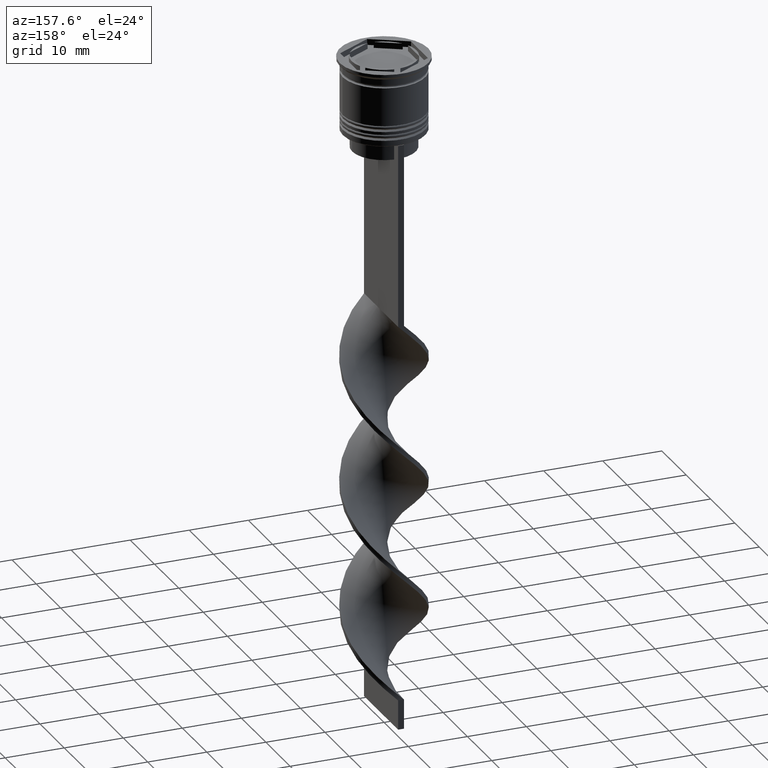
[diagram: clean part render]
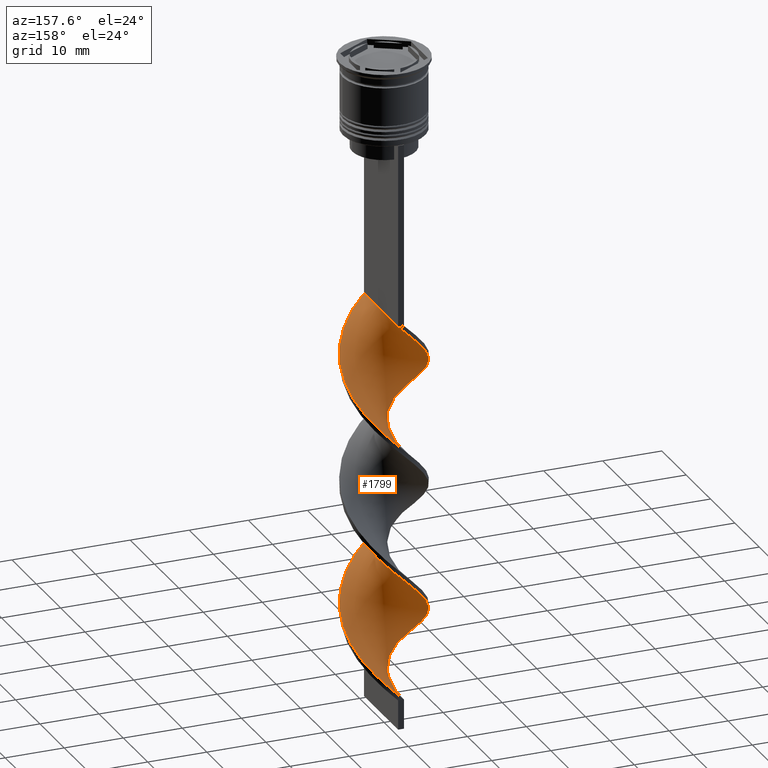
[diagram: same view with one face highlighted and labeled with its STEP entity id]
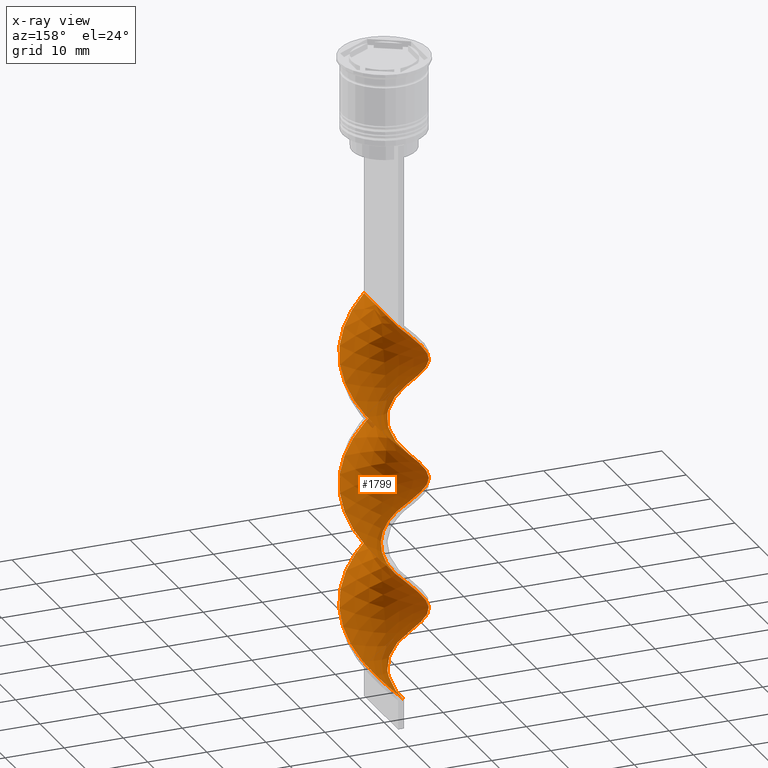
[diagram: x-ray of the same camera — body ghosted, the highlighted face saturated]
A machine part, auxiliary view. The second image highlights one B-rep face of the part: STEP entity #1799.
The next image is the same camera in x-ray: the body ghosted, the highlighted face saturated — about 0% of this face is hidden behind the body in this view.
In plain terms, the highlighted face is a freeform B-spline surface patch.
Its self-contained STEP definition (entity closure, byte-faithful):
#25 = CARTESIAN_POINT ( 'NONE',  ( 0.5000000000000000000, -6.999999999999997335, -43.50000000000000000 ) ) ;
#33 = CARTESIAN_POINT ( 'NONE',  ( 6.967048179568302579, 1.198476987909308011, -77.14102564102563520 ) ) ;
#50 = CARTESIAN_POINT ( 'NONE',  ( 6.722416142319175059, 2.014726087955042821, -77.96153846153845279 ) ) ;
#59 = CARTESIAN_POINT ( 'NONE',  ( 7.009230458814037057, -0.3474023247382352353, -53.34615384615383959 ) ) ;
#65 = CARTESIAN_POINT ( 'NONE',  ( -6.009647691495620947, 3.722934602041179986, -50.88461538461538680 ) ) ;
#78 = CARTESIAN_POINT ( 'NONE',  ( 5.476854687890015505, 4.387945160064917083, -58.26923076923076650 ) ) ;
#89 = CARTESIAN_POINT ( 'NONE',  ( 6.888693778558718783, -1.340111198836292372, -74.67948717948718240 ) ) ;
#114 = CARTESIAN_POINT ( 'NONE',  ( -2.029523600043934728, -6.771790116641152935, -83.70512820512820440 ) ) ;
#122 = CARTESIAN_POINT ( 'NONE',  ( -6.725974819057656262, 2.176550059239737323, -95.19230769230769340 ) ) ;
#128 = CARTESIAN_POINT ( 'NONE',  ( 0.3499538825558265454, 7.060710991611127696, -64.01282051282051100 ) ) ;
#141 = CARTESIAN_POINT ( 'NONE',  ( 7.009230458814037057, -0.3474023247382352353, -53.34615384615383959 ) ) ;
#147 = CARTESIAN_POINT ( 'NONE',  ( 3.591144782915617117, -6.089317414547554819, -68.93589743589743080 ) ) ;
#150 = CARTESIAN_POINT ( 'NONE',  ( 7.009230458814037057, -0.3474023247382352353, -96.01282051282051100 ) ) ;
#155 = CARTESIAN_POINT ( 'NONE',  ( 7.051412738059776864, 0.5036723384328409825, -54.16666666666665719 ) ) ;
#159 = CARTESIAN_POINT ( 'NONE',  ( 6.367811255276637716, -2.949742330640459542, -73.03846153846153300 ) ) ;
#164 = CARTESIAN_POINT ( 'NONE',  ( 1.349953882555823492, -6.939289008388866975, -86.98717948717948900 ) ) ;
#171 = CARTESIAN_POINT ( 'NONE',  ( -0.3499538825558239363, 7.060710991611133025, -86.98717948717948900 ) ) ;
#176 = CARTESIAN_POINT ( 'NONE',  ( -1.189738741299878777, 6.916250554126145644, -87.80769230769230660 ) ) ;
#181 = CARTESIAN_POINT ( 'NONE',  ( 2.971407234896035643, -6.414580771288298955, -88.62820512820512420 ) ) ;
#191 = CARTESIAN_POINT ( 'NONE',  ( -5.476854687890019058, 4.387945160064921524, -92.73076923076922640 ) ) ;
#199 = CARTESIAN_POINT ( 'NONE',  ( -4.944061684284418057, 5.052955718088663062, -91.91025641025643722 ) ) ;
#229 = CARTESIAN_POINT ( 'NONE',  ( 6.044919434621171206, -3.564961294171262285, -92.73076923076922640 ) ) ;
#247 = CARTESIAN_POINT ( 'NONE',  ( 1.189738741299880109, 6.916250554126139427, -105.8589743589743506 ) ) ;
#278 = CARTESIAN_POINT ( 'NONE',  ( -5.016113981771120223, -4.908013908077310639, -102.5769230769230660 ) ) ;
#290 = CARTESIAN_POINT ( 'NONE',  ( -6.044919434621171206, 3.564961294171262285, -71.39743589743588359 ) ) ;
#307 = CARTESIAN_POINT ( 'NONE',  ( -6.044919434621174759, -3.564961294171263173, -100.9358974358974308 ) ) ;
#333 = CARTESIAN_POINT ( 'NONE',  ( -6.477784105070046650, -2.830975188000774079, -57.44871794871794890 ) ) ;
#340 = CARTESIAN_POINT ( 'NONE',  ( 3.695790217132983280, -5.965830593550583316, -46.78205128205127750 ) ) ;
#347 = CARTESIAN_POINT ( 'NONE',  ( -3.695790217132986832, -5.965830593550586869, -61.55128205128204399 ) ) ;
#354 = CARTESIAN_POINT ( 'NONE',  ( 6.967048179568298139, -1.198476987909309788, -52.52564102564102910 ) ) ;
#364 = CARTESIAN_POINT ( 'NONE',  ( -0.3499538825558239363, 7.060710991611133025, -44.32051282051282470 ) ) ;
#387 = CARTESIAN_POINT ( 'NONE',  ( 5.612054764172307308, 4.298947400341747382, -80.42307692307691980 ) ) ;
#394 = CARTESIAN_POINT ( 'NONE',  ( -4.420173199369929584, 5.517080415812868566, -68.93589743589743080 ) ) ;
#401 = CARTESIAN_POINT ( 'NONE',  ( 1.189738741299876557, -6.916250554126146532, -66.47435897435896379 ) ) ;
#406 = CARTESIAN_POINT ( 'NONE',  ( -5.612054764172298427, 4.298947400341751823, -70.57692307692306599 ) ) ;
#415 = CARTESIAN_POINT ( 'NONE',  ( 3.591144782915615785, 6.089317414547548601, -60.73076923076922640 ) ) ;
#418 = CARTESIAN_POINT ( 'NONE',  ( -2.029523600043933396, 6.771790116641159152, -45.96153846153845990 ) ) ;
#424 = CARTESIAN_POINT ( 'NONE',  ( 4.420173199369930472, -5.517080415812867678, -90.26923076923077360 ) ) ;
#435 = CARTESIAN_POINT ( 'NONE',  ( 4.944061684284416280, 5.052955718088656845, -59.08974358974359120 ) ) ;
#440 = CARTESIAN_POINT ( 'NONE',  ( -4.420173199369934913, -5.517080415812871230, -60.73076923076922640 ) ) ;
#452 = CARTESIAN_POINT ( 'NONE',  ( 1.349953882555823492, -6.939289008388866975, -44.32051282051282470 ) ) ;
#455 = CARTESIAN_POINT ( 'NONE',  ( -2.810334191479775701, 6.430553765594355653, -46.78205128205127750 ) ) ;
#458 = CARTESIAN_POINT ( 'NONE',  ( -7.051412738059777752, -0.5036723384328402053, -75.50000000000000000 ) ) ;
#466 = CARTESIAN_POINT ( 'NONE',  ( -6.009647691495620947, 3.722934602041179986, -93.55128205128204399 ) ) ;
#485 = CARTESIAN_POINT ( 'NONE',  ( -4.267603233600016921, 5.571136566318108052, -91.08974358974359120 ) ) ;
#493 = CARTESIAN_POINT ( 'NONE',  ( 4.420173199369935801, 5.517080415812871230, -82.06410256410255499 ) ) ;
#584 = CARTESIAN_POINT ( 'NONE',  ( -6.009647691495620947, 3.722934602041179986, -93.55128205128204399 ) ) ;
#610 = CARTESIAN_POINT ( 'NONE',  ( 6.477784105070041321, -2.830975188000772746, -50.88461538461537970 ) ) ;
#618 = CARTESIAN_POINT ( 'NONE',  ( -5.476854687890019058, 4.387945160064921524, -50.06410256410256210 ) ) ;
#647 = CARTESIAN_POINT ( 'NONE',  ( -6.722416142319174170, -2.014726087955041933, -56.62820512820513130 ) ) ;
#669 = CARTESIAN_POINT ( 'NONE',  ( -1.349953882555827045, -6.939289008388872304, -64.01282051282051100 ) ) ;
#677 = CARTESIAN_POINT ( 'NONE',  ( 4.944061684284416280, 5.052955718088656845, -101.7564102564102484 ) ) ;
#686 = CARTESIAN_POINT ( 'NONE',  ( -3.695790217132986832, -5.965830593550586869, -104.2179487179487012 ) ) ;
#689 = CARTESIAN_POINT ( 'NONE',  ( 0.3499538825558224375, -7.060710991611133025, -65.65384615384614619 ) ) ;
#695 = CARTESIAN_POINT ( 'NONE',  ( 1.189738741299880109, 6.916250554126139427, -63.19230769230768630 ) ) ;
#703 = CARTESIAN_POINT ( 'NONE',  ( 0.3499538825558265454, 7.060710991611127696, -64.01282051282051100 ) ) ;
#707 = CARTESIAN_POINT ( 'NONE',  ( 2.029523600043930731, -6.771790116641160040, -67.29487179487178139 ) ) ;
#729 = CARTESIAN_POINT ( 'NONE',  ( -5.016113981771113117, 4.908013908077309750, -69.75641025641024839 ) ) ;
#734 = CARTESIAN_POINT ( 'NONE',  ( -5.016113981771120223, -4.908013908077310639, -59.91025641025640880 ) ) ;
#738 = CARTESIAN_POINT ( 'NONE',  ( 3.695790217132983280, -5.965830593550583316, -89.44871794871794179 ) ) ;
#750 = CARTESIAN_POINT ( 'NONE',  ( -6.367811255276637716, 2.949742330640459098, -94.37179487179486159 ) ) ;
#755 = CARTESIAN_POINT ( 'NONE',  ( 1.189738741299876557, -6.916250554126146532, -66.47435897435896379 ) ) ;
#767 = CARTESIAN_POINT ( 'NONE',  ( -5.612054764172305532, -4.298947400341750935, -101.7564102564102484 ) ) ;
#770 = CARTESIAN_POINT ( 'NONE',  ( 6.009647691495618282, -3.722934602041183094, -72.21794871794871540 ) ) ;
#792 = CARTESIAN_POINT ( 'NONE',  ( -7.009230458814042386, -0.3474023247382335144, -97.65384615384614619 ) ) ;
#808 = CARTESIAN_POINT ( 'NONE',  ( 2.029523600043933840, 6.771790116641152935, -105.0384615384615330 ) ) ;
#825 = CARTESIAN_POINT ( 'NONE',  ( 6.725974819057651821, 2.176550059239734658, -98.47435897435896379 ) ) ;
#840 = CARTESIAN_POINT ( 'NONE',  ( -0.4999999999999991673, 6.999999999999997335, -107.5000000000000000 ) ) ;
#862 = CARTESIAN_POINT ( 'NONE',  ( 0.5000000000000000000, -6.999999999999997335, -86.16666666666667140 ) ) ;
#882 = CARTESIAN_POINT ( 'NONE',  ( -1.189738741299878777, 6.916250554126145644, -45.14102564102563520 ) ) ;
#883 = EDGE_CURVE ( 'NONE', #2552, #2520, #1737, .T. ) ;
#893 = CARTESIAN_POINT ( 'NONE',  ( 6.044919434621171206, -3.564961294171262285, -50.06410256410256210 ) ) ;
#916 = CARTESIAN_POINT ( 'NONE',  ( 6.725974819057651821, 2.176550059239734214, -55.80769230769230660 ) ) ;
#931 = CARTESIAN_POINT ( 'NONE',  ( 2.160680558725929679, -6.676934889838582521, -45.14102564102563520 ) ) ;
#939 = CARTESIAN_POINT ( 'NONE',  ( 5.016113981771121111, 4.908013908077309750, -81.24358974358973740 ) ) ;
#958 = CARTESIAN_POINT ( 'NONE',  ( 5.476854687890019058, -4.387945160064921524, -71.39743589743588359 ) ) ;
#967 = CARTESIAN_POINT ( 'NONE',  ( 6.367811255276634164, 2.949742330640454657, -99.29487179487178139 ) ) ;
#977 = CARTESIAN_POINT ( 'NONE',  ( 6.367811255276634164, 2.949742330640454657, -56.62820512820513130 ) ) ;
#986 = CARTESIAN_POINT ( 'NONE',  ( -6.967048179568297250, 1.198476987909309344, -73.85897435897436480 ) ) ;
#992 = CARTESIAN_POINT ( 'NONE',  ( 1.349953882555827933, 6.939289008388872304, -85.34615384615383959 ) ) ;
#996 = CARTESIAN_POINT ( 'NONE',  ( -4.267603233600016921, 5.571136566318108052, -48.42307692307691269 ) ) ;
#1000 = CARTESIAN_POINT ( 'NONE',  ( 1.189738741299880109, 6.916250554126139427, -105.8589743589743506 ) ) ;
#1008 = CARTESIAN_POINT ( 'NONE',  ( 2.971407234896035199, -6.414580771288298955, -45.96153846153845279 ) ) ;
#1017 = CARTESIAN_POINT ( 'NONE',  ( -4.267603233600016921, -5.571136566318100947, -81.24358974358973740 ) ) ;
#1022 = CARTESIAN_POINT ( 'NONE',  ( -0.5000000000000003331, -2.333333333333336590, -107.5000000000000000 ) ) ;
#1033 = CARTESIAN_POINT ( 'NONE',  ( 2.160680558725929679, -6.676934889838582521, -45.14102564102563520 ) ) ;
#1036 = CARTESIAN_POINT ( 'NONE',  ( -4.267603233600016921, 5.571136566318108052, -91.08974358974359120 ) ) ;
#1040 = CARTESIAN_POINT ( 'NONE',  ( 0.5000000000000000000, -6.999999999999997335, -86.16666666666667140 ) ) ;
#1049 = CARTESIAN_POINT ( 'NONE',  ( -6.477784105070046650, -2.830975188000774079, -100.1153846153846274 ) ) ;
#1052 = CARTESIAN_POINT ( 'NONE',  ( -6.967048179568301691, -1.198476987909310676, -55.80769230769230660 ) ) ;
#1064 = CARTESIAN_POINT ( 'NONE',  ( -6.367811255276633275, -2.949742330640455545, -77.96153846153845279 ) ) ;
#1082 = CARTESIAN_POINT ( 'NONE',  ( -7.051412738059776864, -0.5036723384328400943, -75.49999999999998579 ) ) ;
#1103 = CARTESIAN_POINT ( 'NONE',  ( -6.967048179568296362, 1.198476987909309566, -73.85897435897436480 ) ) ;
#1105 = CARTESIAN_POINT ( 'NONE',  ( -0.5000000000000008882, -7.000000000000002665, -107.5000000000000000 ) ) ;
#1134 = CARTESIAN_POINT ( 'NONE',  ( 3.695790217132983280, -5.965830593550583316, -89.44871794871794179 ) ) ;
#1158 = CARTESIAN_POINT ( 'NONE',  ( 6.477784105070047538, 2.830975188000770970, -78.78205128205127039 ) ) ;
#1188 = CARTESIAN_POINT ( 'NONE',  ( -7.051412738059782193, 0.5036723384328418707, -54.16666666666665719 ) ) ;
#1212 = CARTESIAN_POINT ( 'NONE',  ( 7.051412738059782193, -0.5036723384328427588, -75.49999999999998579 ) ) ;
#1228 = CARTESIAN_POINT ( 'NONE',  ( -7.009230458814042386, -0.3474023247382335144, -54.98717948717948190 ) ) ;
#1231 = CARTESIAN_POINT ( 'NONE',  ( 5.612054764172300203, -4.298947400341750047, -91.91025641025643722 ) ) ;
#1238 = CARTESIAN_POINT ( 'NONE',  ( -6.967048179568301691, -1.198476987909310898, -98.47435897435896379 ) ) ;
#1248 = CARTESIAN_POINT ( 'NONE',  ( -6.888693778558715231, -1.340111198836283046, -76.32051282051281760 ) ) ;
#1260 = CARTESIAN_POINT ( 'NONE',  ( -1.189738741299878777, 6.916250554126145644, -87.80769230769230660 ) ) ;
#1264 = CARTESIAN_POINT ( 'NONE',  ( 0.5000000000000000000, 7.000000000000002665, -43.50000000000000000 ) ) ;
#1269 = CARTESIAN_POINT ( 'NONE',  ( 6.009647691495615618, 3.722934602041176877, -100.1153846153846132 ) ) ;
#1276 = CARTESIAN_POINT ( 'NONE',  ( -2.029523600043933396, 6.771790116641159152, -88.62820512820513841 ) ) ;
#1279 = CARTESIAN_POINT ( 'NONE',  ( -6.367811255276637716, 2.949742330640459098, -51.70512820512820440 ) ) ;
#1293 = CARTESIAN_POINT ( 'NONE',  ( -6.722416142319174170, -2.014726087955041933, -99.29487179487178139 ) ) ;
#1297 = CARTESIAN_POINT ( 'NONE',  ( -2.029523600043933396, 6.771790116641159152, -88.62820512820512420 ) ) ;
#1303 = CARTESIAN_POINT ( 'NONE',  ( 5.016113981771114005, -4.908013908077308862, -91.08974358974359120 ) ) ;
#1317 = CARTESIAN_POINT ( 'NONE',  ( 0.5000000000000000000, -6.999999999999997335, -43.50000000000000000 ) ) ;
#1322 = CARTESIAN_POINT ( 'NONE',  ( -0.3499538825558239363, 7.060710991611133025, -44.32051282051282470 ) ) ;
#1334 = CARTESIAN_POINT ( 'NONE',  ( 6.477784105070041321, -2.830975188000772746, -93.55128205128204399 ) ) ;
#1336 = CARTESIAN_POINT ( 'NONE',  ( -4.944061684284418057, 5.052955718088663062, -49.24358974358974450 ) ) ;
#1350 = CARTESIAN_POINT ( 'NONE',  ( -6.477784105070039544, 2.830975188000776299, -72.21794871794871540 ) ) ;
#1385 = CARTESIAN_POINT ( 'NONE',  ( -4.267603233600016921, -5.571136566318100947, -81.24358974358973740 ) ) ;
#1404 = CARTESIAN_POINT ( 'NONE',  ( -2.029523600043934728, -6.771790116641152935, -83.70512820512820440 ) ) ;
#1409 = CARTESIAN_POINT ( 'NONE',  ( -5.612054764172305532, -4.298947400341750935, -101.7564102564102484 ) ) ;
#1444 = CARTESIAN_POINT ( 'NONE',  ( -2.971407234896040084, -6.414580771288303396, -62.37179487179486870 ) ) ;
#1445 = CARTESIAN_POINT ( 'NONE',  ( 0.5000000000000000000, -6.999999999999997335, -43.50000000000000000 ) ) ;
#1453 = CARTESIAN_POINT ( 'NONE',  ( 6.722416142319168841, -2.014726087955042377, -51.70512820512820440 ) ) ;
#1459 = CARTESIAN_POINT ( 'NONE',  ( -2.160680558725933675, -6.676934889838586962, -63.19230769230768630 ) ) ;
#1468 = CARTESIAN_POINT ( 'NONE',  ( 7.051412738059777752, 0.5036723384328409825, -54.16666666666666430 ) ) ;
#1476 = CARTESIAN_POINT ( 'NONE',  ( 6.009647691495618282, -3.722934602041183094, -72.21794871794871540 ) ) ;
#1489 = CARTESIAN_POINT ( 'NONE',  ( 4.267603233600016033, 5.571136566318101835, -59.91025641025640880 ) ) ;
#1504 = CARTESIAN_POINT ( 'NONE',  ( -6.009647691495618282, -3.722934602041173324, -78.78205128205127039 ) ) ;
#1510 = B_SPLINE_CURVE_WITH_KNOTS ( 'NONE', 3,
 ( #1798, #1022, #2412, #2670 ),
 .UNSPECIFIED., .F., .F.,
 ( 4, 4 ),
 ( 0.000000000000000000, 1.000000000000000000 ),
 .UNSPECIFIED. ) ;
#1513 = CARTESIAN_POINT ( 'NONE',  ( 4.944061684284417169, -5.052955718088663062, -70.57692307692306599 ) ) ;
#1520 = CARTESIAN_POINT ( 'NONE',  ( -6.722416142319168841, 2.014726087955043266, -73.03846153846153300 ) ) ;
#1527 = CARTESIAN_POINT ( 'NONE',  ( -5.016113981771120223, -4.908013908077310639, -102.5769230769230660 ) ) ;
#1531 = CARTESIAN_POINT ( 'NONE',  ( 6.044919434621175647, 3.564961294171262285, -79.60256410256410220 ) ) ;
#1540 = CARTESIAN_POINT ( 'NONE',  ( 6.722416142319168841, -2.014726087955042377, -94.37179487179486159 ) ) ;
#1550 = CARTESIAN_POINT ( 'NONE',  ( 6.888693778558713454, 1.340111198836287043, -54.98717948717948190 ) ) ;
#1552 = CARTESIAN_POINT ( 'NONE',  ( -6.009647691495620947, 3.722934602041179986, -50.88461538461537970 ) ) ;
#1555 = CARTESIAN_POINT ( 'NONE',  ( 6.044919434621171206, -3.564961294171262285, -92.73076923076922640 ) ) ;
#1561 = CARTESIAN_POINT ( 'NONE',  ( -6.888693778558718783, 1.340111198836290152, -96.01282051282051100 ) ) ;
#1565 = CARTESIAN_POINT ( 'NONE',  ( 5.016113981771121111, 4.908013908077309750, -81.24358974358973740 ) ) ;
#1573 = CARTESIAN_POINT ( 'NONE',  ( -1.349953882555821938, 6.939289008388866975, -65.65384615384614619 ) ) ;
#1581 = CARTESIAN_POINT ( 'NONE',  ( -1.349953882555827045, -6.939289008388872304, -106.6794871794871682 ) ) ;
#1602 = CARTESIAN_POINT ( 'NONE',  ( 0.3499538825558265454, 7.060710991611127696, -106.6794871794871682 ) ) ;
#1604 = CARTESIAN_POINT ( 'NONE',  ( 1.349953882555827933, 6.939289008388872304, -85.34615384615385381 ) ) ;
#1614 = EDGE_CURVE ( 'NONE', #2520, #3594, #1767, .T. ) ;
#1618 = CARTESIAN_POINT ( 'NONE',  ( -6.967048179568301691, -1.198476987909310676, -98.47435897435896379 ) ) ;
#1632 = CARTESIAN_POINT ( 'NONE',  ( -6.888693778558715231, -1.340111198836283046, -76.32051282051281760 ) ) ;
#1653 = CARTESIAN_POINT ( 'NONE',  ( -3.695790217132986832, -5.965830593550586869, -104.2179487179487012 ) ) ;
#1662 = EDGE_LOOP ( 'NONE', ( #2468, #2778, #2596, #1694 ) ) ;
#1668 = CARTESIAN_POINT ( 'NONE',  ( 3.591144782915615785, 6.089317414547548601, -103.3974358974358694 ) ) ;
#1671 = CARTESIAN_POINT ( 'NONE',  ( -6.722416142319174170, -2.014726087955041933, -99.29487179487178139 ) ) ;
#1685 = CARTESIAN_POINT ( 'NONE',  ( -6.725974819057656262, 2.176550059239736878, -95.19230769230769340 ) ) ;
#1694 = ORIENTED_EDGE ( 'NONE', *, *, #1614, .F. ) ;
#1706 = CARTESIAN_POINT ( 'NONE',  ( -3.591144782915618006, 6.089317414547553042, -47.60256410256408799 ) ) ;
#1717 = CARTESIAN_POINT ( 'NONE',  ( 4.420173199369930472, -5.517080415812867678, -47.60256410256409509 ) ) ;
#1723 = CARTESIAN_POINT ( 'NONE',  ( 0.5000000000000000000, 7.000000000000002665, -43.50000000000000000 ) ) ;
#1730 = CARTESIAN_POINT ( 'NONE',  ( 1.349953882555823492, -6.939289008388866975, -44.32051282051282470 ) ) ;
#1736 = CARTESIAN_POINT ( 'NONE',  ( -5.612054764172305532, -4.298947400341750935, -59.08974358974359120 ) ) ;
#1737 = LINE ( 'NONE', #1445, #2338 ) ;
#1754 = CARTESIAN_POINT ( 'NONE',  ( -0.5000000000000008882, -7.000000000000002665, -64.83333333333332860 ) ) ;
#1767 =( BOUNDED_CURVE ( )  B_SPLINE_CURVE ( 2, ( #1264, #1322, #2422, #418, #455, #1842, #996, #1336, #2363, #1552, #1279, #3525, #2379, #2067, #3483, #1052, #2122, #2138, #2664, #1791, #734, #440, #2717, #1861, #2437, #2098, #3232, #689, #755, #707, #2922, #147, #3187, #3207, #3546, #770, #159, #1828, #2397, #2904, #2973, #1805, #3246, #2938, #1531, #2644, #1565, #493, #3176, #2699, #3469, #1604, #2082, #2679, #176, #1297, #2953, #3507, #1036, #199, #1953, #584, #2514, #1685, #2809, #3287, #792, #1618, #1671, #2156, #307, #1409, #278, #1939, #1653, #2777, #3014, #2792, #1105 ),
 .UNSPECIFIED., .F., .T. ) 
 B_SPLINE_CURVE_WITH_KNOTS ( ( 3, 2, 2, 2, 2, 2, 2, 2, 2, 2, 2, 2, 2, 2, 2, 2, 2, 2, 2, 2, 2, 2, 2, 2, 2, 2, 2, 2, 2, 2, 2, 2, 2, 2, 2, 2, 2, 2, 2, 3 ),
 ( 0.000000000000000000, 0.01923076923076923184, 0.03846153846153846367, 0.05769230769230768857, 0.07692307692307692735, 0.09615384615384615918, 0.1153846153846153771, 0.1346153846153846090, 0.1538461538461538547, 0.1730769230769230449, 0.1923076923076923184, 0.2115384615384615363, 0.2307692307692307543, 0.2500000000000000000, 0.2692307692307692180, 0.2884615384615384359, 0.3076923076923077094, 0.3269230769230769273, 0.3461538461538460898, 0.3653846153846153633, 0.3846153846153846367, 0.4038461538461539102, 0.4230769230769230727, 0.4423076923076922906, 0.4615384615384615086, 0.4807692307692307820, 0.5000000000000000000, 0.5192307692307692735, 0.5384615384615384359, 0.5576923076923077094, 0.5769230769230768718, 0.5961538461538461453, 0.6153846153846154188, 0.6346153846153845812, 0.6538461538461538547, 0.6730769230769230171, 0.6923076923076921796, 0.7115384615384615641, 0.7307692307692307265, 0.7500000000000000000 ),
 .UNSPECIFIED. ) 
 CURVE ( )  GEOMETRIC_REPRESENTATION_ITEM ( )  RATIONAL_B_SPLINE_CURVE ( ( 1.000000000000000000, 0.9927088740980539727, 1.000000000000000000, 0.9927088740980539727, 1.000000000000000000, 0.9927088740980539727, 1.000000000000000000, 0.9927088740980539727, 1.000000000000000000, 0.9927088740980539727, 1.000000000000000000, 0.9927088740980539727, 1.000000000000000000, 0.9927088740980539727, 1.000000000000000000, 0.9927088740980539727, 1.000000000000000000, 0.9927088740980539727, 1.000000000000000000, 0.9927088740980539727, 1.000000000000000000, 0.9927088740980539727, 1.000000000000000000, 0.9927088740980539727, 1.000000000000000000, 0.9927088740980539727, 1.000000000000000000, 0.9927088740980539727, 1.000000000000000000, 0.9927088740980539727, 1.000000000000000000, 0.9927088740980539727, 1.000000000000000000, 0.9927088740980539727, 1.000000000000000000, 0.9927088740980539727, 1.000000000000000000, 0.9927088740980539727, 1.000000000000000000, 0.9927088740980539727, 1.000000000000000000, 0.9927088740980539727, 1.000000000000000000, 0.9927088740980539727, 1.000000000000000000, 0.9927088740980539727, 1.000000000000000000, 0.9927088740980539727, 1.000000000000000000, 0.9927088740980539727, 1.000000000000000000, 0.9927088740980539727, 1.000000000000000000, 0.9927088740980539727, 1.000000000000000000, 0.9927088740980539727, 1.000000000000000000, 0.9927088740980539727, 1.000000000000000000, 0.9927088740980539727, 1.000000000000000000, 0.9927088740980539727, 1.000000000000000000, 0.9927088740980539727, 1.000000000000000000, 0.9927088740980539727, 1.000000000000000000, 0.9927088740980539727, 1.000000000000000000, 0.9927088740980539727, 1.000000000000000000, 0.9927088740980539727, 1.000000000000000000, 0.9927088740980539727, 1.000000000000000000, 0.9927088740980539727, 1.000000000000000000, 0.9927088740980539727, 1.000000000000000000 ) ) 
 REPRESENTATION_ITEM ( '' )  );
#1769 = CARTESIAN_POINT ( 'NONE',  ( 6.477784105070041321, -2.830975188000772746, -93.55128205128204399 ) ) ;
#1775 = CARTESIAN_POINT ( 'NONE',  ( -5.016113981771120223, -4.908013908077310639, -59.91025641025640880 ) ) ;
#1779 = CARTESIAN_POINT ( 'NONE',  ( 3.591144782915615785, 6.089317414547548601, -103.3974358974358836 ) ) ;
#1788 = CARTESIAN_POINT ( 'NONE',  ( 5.476854687890015505, 4.387945160064917083, -58.26923076923076650 ) ) ;
#1791 = CARTESIAN_POINT ( 'NONE',  ( -5.612054764172305532, -4.298947400341750935, -59.08974358974358410 ) ) ;
#1795 = CARTESIAN_POINT ( 'NONE',  ( -1.189738741299884106, -6.916250554126139427, -84.52564102564103621 ) ) ;
#1798 = CARTESIAN_POINT ( 'NONE',  ( -0.5000000000000008882, -7.000000000000002665, -107.5000000000000000 ) ) ;
#1799 = ADVANCED_FACE ( 'NONE', ( #2602 ), #3509, .T. ) ;
#1802 = CARTESIAN_POINT ( 'NONE',  ( -0.4999999999999991673, 6.999999999999997335, -64.83333333333332860 ) ) ;
#1805 = CARTESIAN_POINT ( 'NONE',  ( 6.967048179568302579, 1.198476987909308011, -77.14102564102563520 ) ) ;
#1812 = CARTESIAN_POINT ( 'NONE',  ( -3.695790217132982836, 5.965830593550583316, -68.11538461538459899 ) ) ;
#1823 = CARTESIAN_POINT ( 'NONE',  ( -5.612054764172298427, 4.298947400341751823, -70.57692307692306599 ) ) ;
#1828 = CARTESIAN_POINT ( 'NONE',  ( 6.725974819057657150, -2.176550059239735546, -73.85897435897436480 ) ) ;
#1832 = CARTESIAN_POINT ( 'NONE',  ( 2.029523600043933840, 6.771790116641152935, -105.0384615384615188 ) ) ;
#1839 = CARTESIAN_POINT ( 'NONE',  ( -3.591144782915618006, 6.089317414547553042, -90.26923076923075939 ) ) ;
#1842 = CARTESIAN_POINT ( 'NONE',  ( -3.591144782915618006, 6.089317414547553931, -47.60256410256409509 ) ) ;
#1857 = CARTESIAN_POINT ( 'NONE',  ( -4.420173199369934913, -5.517080415812870342, -103.3974358974358694 ) ) ;
#1861 = CARTESIAN_POINT ( 'NONE',  ( -2.971407234896039640, -6.414580771288303396, -62.37179487179486870 ) ) ;
#1878 = CARTESIAN_POINT ( 'NONE',  ( -2.810334191479778365, -6.430553765594348548, -82.88461538461537259 ) ) ;
#1896 = CARTESIAN_POINT ( 'NONE',  ( 2.971407234896035199, -6.414580771288298955, -88.62820512820513841 ) ) ;
#1912 = CARTESIAN_POINT ( 'NONE',  ( 5.476854687890015505, 4.387945160064917083, -100.9358974358974308 ) ) ;
#1933 = CARTESIAN_POINT ( 'NONE',  ( 6.888693778558713454, 1.340111198836287043, -97.65384615384614619 ) ) ;
#1939 = CARTESIAN_POINT ( 'NONE',  ( -4.420173199369934913, -5.517080415812871230, -103.3974358974358836 ) ) ;
#1948 = CARTESIAN_POINT ( 'NONE',  ( 5.612054764172300203, -4.298947400341750047, -91.91025641025643722 ) ) ;
#1953 = CARTESIAN_POINT ( 'NONE',  ( -5.476854687890019058, 4.387945160064921524, -92.73076923076922640 ) ) ;
#1971 = CARTESIAN_POINT ( 'NONE',  ( -6.367811255276637716, 2.949742330640459098, -51.70512820512820440 ) ) ;
#2008 = CARTESIAN_POINT ( 'NONE',  ( -4.944061684284418057, 5.052955718088663062, -49.24358974358973740 ) ) ;
#2017 = CARTESIAN_POINT ( 'NONE',  ( 4.944061684284416280, 5.052955718088656845, -59.08974358974358410 ) ) ;
#2043 = CARTESIAN_POINT ( 'NONE',  ( 2.810334191479775257, -6.430553765594355653, -68.11538461538459899 ) ) ;
#2055 = CARTESIAN_POINT ( 'NONE',  ( 5.476854687890015505, 4.387945160064917083, -100.9358974358974308 ) ) ;
#2063 = CARTESIAN_POINT ( 'NONE',  ( 6.009647691495616506, 3.722934602041176433, -57.44871794871794890 ) ) ;
#2067 = CARTESIAN_POINT ( 'NONE',  ( -7.051412738059782193, 0.5036723384328418707, -54.16666666666666430 ) ) ;
#2072 = CARTESIAN_POINT ( 'NONE',  ( -3.591144782915616673, -6.089317414547548601, -82.06410256410255499 ) ) ;
#2079 = CARTESIAN_POINT ( 'NONE',  ( 6.725974819057651821, 2.176550059239734658, -55.80769230769230660 ) ) ;
#2082 = CARTESIAN_POINT ( 'NONE',  ( 0.5000000000000000000, 7.000000000000002665, -86.16666666666667140 ) ) ;
#2085 = EDGE_CURVE ( 'NONE', #3594, #3338, #1510, .T. ) ;
#2095 = CARTESIAN_POINT ( 'NONE',  ( -4.420173199369929584, 5.517080415812867678, -68.93589743589743080 ) ) ;
#2098 = CARTESIAN_POINT ( 'NONE',  ( -1.349953882555827045, -6.939289008388872304, -64.01282051282051100 ) ) ;
#2107 = CARTESIAN_POINT ( 'NONE',  ( -0.3499538825558274335, -7.060710991611127696, -85.34615384615385381 ) ) ;
#2118 = CARTESIAN_POINT ( 'NONE',  ( 2.971407234896040972, 6.414580771288303396, -83.70512820512820440 ) ) ;
#2122 = CARTESIAN_POINT ( 'NONE',  ( -6.722416142319174170, -2.014726087955041933, -56.62820512820513130 ) ) ;
#2124 = CARTESIAN_POINT ( 'NONE',  ( -2.160680558725927458, 6.676934889838583409, -66.47435897435896379 ) ) ;
#2134 = CARTESIAN_POINT ( 'NONE',  ( -2.810334191479775701, 6.430553765594355653, -89.44871794871794179 ) ) ;
#2138 = CARTESIAN_POINT ( 'NONE',  ( -6.477784105070046650, -2.830975188000774523, -57.44871794871794890 ) ) ;
#2152 = CARTESIAN_POINT ( 'NONE',  ( 6.722416142319168841, -2.014726087955042377, -94.37179487179486159 ) ) ;
#2156 = CARTESIAN_POINT ( 'NONE',  ( -6.477784105070046650, -2.830975188000774523, -100.1153846153846132 ) ) ;
#2177 = CARTESIAN_POINT ( 'NONE',  ( 4.944061684284416280, 5.052955718088656845, -101.7564102564102484 ) ) ;
#2197 = CARTESIAN_POINT ( 'NONE',  ( 6.009647691495616506, 3.722934602041176433, -100.1153846153846274 ) ) ;
#2213 = CARTESIAN_POINT ( 'NONE',  ( -3.591144782915616673, -6.089317414547548601, -82.06410256410255499 ) ) ;
#2227 = CARTESIAN_POINT ( 'NONE',  ( 5.016113981771114005, -4.908013908077308862, -91.08974358974359120 ) ) ;
#2249 = CARTESIAN_POINT ( 'NONE',  ( 4.420173199369935801, 5.517080415812870342, -82.06410256410255499 ) ) ;
#2257 = CARTESIAN_POINT ( 'NONE',  ( 2.971407234896035643, -6.414580771288298955, -45.96153846153845990 ) ) ;
#2285 = CARTESIAN_POINT ( 'NONE',  ( 0.3499538825558224375, -7.060710991611133025, -65.65384615384614619 ) ) ;
#2306 = CARTESIAN_POINT ( 'NONE',  ( 6.044919434621175647, 3.564961294171262285, -79.60256410256410220 ) ) ;
#2323 = CARTESIAN_POINT ( 'NONE',  ( -2.029523600043933396, 6.771790116641159152, -45.96153846153845279 ) ) ;
#2330 = CARTESIAN_POINT ( 'NONE',  ( 6.725974819057651821, 2.176550059239734214, -98.47435897435896379 ) ) ;
#2337 = CARTESIAN_POINT ( 'NONE',  ( 6.044919434621171206, -3.564961294171262285, -50.06410256410256210 ) ) ;
#2338 = VECTOR ( 'NONE', #2855, 1000.000000000000000 ) ;
#2350 = CARTESIAN_POINT ( 'NONE',  ( -6.725974819057652709, -2.176550059239732438, -77.14102564102563520 ) ) ;
#2360 = CARTESIAN_POINT ( 'NONE',  ( 2.160680558725937228, 6.676934889838585185, -84.52564102564103621 ) ) ;
#2363 = CARTESIAN_POINT ( 'NONE',  ( -5.476854687890019058, 4.387945160064921524, -50.06410256410256210 ) ) ;
#2368 = CARTESIAN_POINT ( 'NONE',  ( 2.810334191479774812, 6.430553765594350324, -104.2179487179487012 ) ) ;
#2374 = CARTESIAN_POINT ( 'NONE',  ( -2.971407234896032978, 6.414580771288299843, -67.29487179487178139 ) ) ;
#2379 = CARTESIAN_POINT ( 'NONE',  ( -6.888693778558718783, 1.340111198836290152, -53.34615384615383959 ) ) ;
#2384 = CARTESIAN_POINT ( 'NONE',  ( 4.267603233600016033, 5.571136566318101835, -102.5769230769230660 ) ) ;
#2392 = CARTESIAN_POINT ( 'NONE',  ( 6.722416142319168841, -2.014726087955042377, -51.70512820512820440 ) ) ;
#2397 = CARTESIAN_POINT ( 'NONE',  ( 6.888693778558718783, -1.340111198836292372, -74.67948717948718240 ) ) ;
#2407 = CARTESIAN_POINT ( 'NONE',  ( -0.4999999999999991673, 6.999999999999997335, -64.83333333333332860 ) ) ;
#2412 = CARTESIAN_POINT ( 'NONE',  ( -0.4999999999999996669, 2.333333333333331261, -107.5000000000000000 ) ) ;
#2419 = CARTESIAN_POINT ( 'NONE',  ( 3.695790217132983280, -5.965830593550583316, -46.78205128205127750 ) ) ;
#2422 = CARTESIAN_POINT ( 'NONE',  ( -1.189738741299878777, 6.916250554126145644, -45.14102564102563520 ) ) ;
#2437 = CARTESIAN_POINT ( 'NONE',  ( -2.160680558725933675, -6.676934889838586962, -63.19230769230768630 ) ) ;
#2451 = CARTESIAN_POINT ( 'NONE',  ( -6.009647691495618282, -3.722934602041173324, -78.78205128205127039 ) ) ;
#2468 = ORIENTED_EDGE ( 'NONE', *, *, #883, .F. ) ;
#2494 = CARTESIAN_POINT ( 'NONE',  ( 6.367811255276634164, 2.949742330640454657, -99.29487179487178139 ) ) ;
#2514 = CARTESIAN_POINT ( 'NONE',  ( -6.367811255276637716, 2.949742330640459098, -94.37179487179486159 ) ) ;
#2520 = VERTEX_POINT ( 'NONE', #2569 ) ;
#2523 = CARTESIAN_POINT ( 'NONE',  ( 5.612054764172300203, -4.298947400341750047, -49.24358974358974450 ) ) ;
#2552 = VERTEX_POINT ( 'NONE', #2813 ) ;
#2554 = CARTESIAN_POINT ( 'NONE',  ( 7.009230458814042386, 0.3474023247382295732, -76.32051282051281760 ) ) ;
#2564 = CARTESIAN_POINT ( 'NONE',  ( 3.591144782915617117, -6.089317414547553931, -68.93589743589743080 ) ) ;
#2569 = CARTESIAN_POINT ( 'NONE',  ( 0.5000000000000000000, 7.000000000000002665, -43.50000000000000000 ) ) ;
#2573 = CARTESIAN_POINT ( 'NONE',  ( 6.009647691495615618, 3.722934602041176877, -57.44871794871794890 ) ) ;
#2583 = CARTESIAN_POINT ( 'NONE',  ( 6.367811255276637716, -2.949742330640459542, -73.03846153846153300 ) ) ;
#2596 = ORIENTED_EDGE ( 'NONE', *, *, #2085, .F. ) ;
#2602 = FACE_OUTER_BOUND ( 'NONE', #1662, .T. ) ;
#2611 = CARTESIAN_POINT ( 'NONE',  ( -2.810334191479778365, -6.430553765594348548, -82.88461538461537259 ) ) ;
#2621 = CARTESIAN_POINT ( 'NONE',  ( 5.016113981771114005, -4.908013908077308862, -48.42307692307691269 ) ) ;
#2627 = CARTESIAN_POINT ( 'NONE',  ( -6.044919434621171206, 3.564961294171262285, -71.39743589743588359 ) ) ;
#2637 = CARTESIAN_POINT ( 'NONE',  ( 2.810334191479774812, 6.430553765594350324, -61.55128205128204399 ) ) ;
#2644 = CARTESIAN_POINT ( 'NONE',  ( 5.612054764172307308, 4.298947400341747382, -80.42307692307691980 ) ) ;
#2651 = CARTESIAN_POINT ( 'NONE',  ( -6.367811255276633275, -2.949742330640455545, -77.96153846153845279 ) ) ;
#2661 = CARTESIAN_POINT ( 'NONE',  ( -2.160680558725927458, 6.676934889838583409, -66.47435897435896379 ) ) ;
#2662 =( BOUNDED_CURVE ( )  B_SPLINE_CURVE ( 2, ( #25, #1730, #931, #2257, #340, #1717, #3369, #2523, #893, #610, #1453, #354, #59, #1468, #3387, #916, #3115, #2573, #78, #2017, #1489, #2865, #2893, #2909, #695, #128, #2407, #1573, #2124, #3179, #1812, #394, #2928, #406, #2627, #3438, #1520, #986, #3515, #458, #1248, #2350, #2651, #1504, #2685, #3458, #1017, #2072, #2611, #114, #1795, #2107, #1040, #164, #3236, #181, #738, #424, #1303, #1231, #1555, #1769, #1540, #3166, #150, #2882, #3214, #2330, #967, #1269, #2055, #677, #2384, #1779, #2368, #1832, #1000, #2668, #3474 ),
 .UNSPECIFIED., .F., .T. ) 
 B_SPLINE_CURVE_WITH_KNOTS ( ( 3, 2, 2, 2, 2, 2, 2, 2, 2, 2, 2, 2, 2, 2, 2, 2, 2, 2, 2, 2, 2, 2, 2, 2, 2, 2, 2, 2, 2, 2, 2, 2, 2, 2, 2, 2, 2, 2, 2, 3 ),
 ( 0.000000000000000000, 0.01923076923076923184, 0.03846153846153846367, 0.05769230769230768857, 0.07692307692307692735, 0.09615384615384615918, 0.1153846153846153771, 0.1346153846153846090, 0.1538461538461538547, 0.1730769230769230449, 0.1923076923076923184, 0.2115384615384615363, 0.2307692307692307543, 0.2500000000000000000, 0.2692307692307692180, 0.2884615384615384359, 0.3076923076923077094, 0.3269230769230769273, 0.3461538461538460898, 0.3653846153846153633, 0.3846153846153846367, 0.4038461538461539102, 0.4230769230769230727, 0.4423076923076922906, 0.4615384615384615086, 0.4807692307692307820, 0.5000000000000000000, 0.5192307692307692735, 0.5384615384615384359, 0.5576923076923077094, 0.5769230769230768718, 0.5961538461538461453, 0.6153846153846154188, 0.6346153846153845812, 0.6538461538461538547, 0.6730769230769230171, 0.6923076923076921796, 0.7115384615384615641, 0.7307692307692307265, 0.7500000000000000000 ),
 .UNSPECIFIED. ) 
 CURVE ( )  GEOMETRIC_REPRESENTATION_ITEM ( )  RATIONAL_B_SPLINE_CURVE ( ( 1.000000000000000000, 0.9927088740980539727, 1.000000000000000000, 0.9927088740980539727, 1.000000000000000000, 0.9927088740980539727, 1.000000000000000000, 0.9927088740980539727, 1.000000000000000000, 0.9927088740980539727, 1.000000000000000000, 0.9927088740980539727, 1.000000000000000000, 0.9927088740980539727, 1.000000000000000000, 0.9927088740980539727, 1.000000000000000000, 0.9927088740980539727, 1.000000000000000000, 0.9927088740980539727, 1.000000000000000000, 0.9927088740980539727, 1.000000000000000000, 0.9927088740980539727, 1.000000000000000000, 0.9927088740980539727, 1.000000000000000000, 0.9927088740980539727, 1.000000000000000000, 0.9927088740980539727, 1.000000000000000000, 0.9927088740980539727, 1.000000000000000000, 0.9927088740980539727, 1.000000000000000000, 0.9927088740980539727, 1.000000000000000000, 0.9927088740980539727, 1.000000000000000000, 0.9927088740980539727, 1.000000000000000000, 0.9927088740980539727, 1.000000000000000000, 0.9927088740980539727, 1.000000000000000000, 0.9927088740980539727, 1.000000000000000000, 0.9927088740980539727, 1.000000000000000000, 0.9927088740980539727, 1.000000000000000000, 0.9927088740980539727, 1.000000000000000000, 0.9927088740980539727, 1.000000000000000000, 0.9927088740980539727, 1.000000000000000000, 0.9927088740980539727, 1.000000000000000000, 0.9927088740980539727, 1.000000000000000000, 0.9927088740980539727, 1.000000000000000000, 0.9927088740980539727, 1.000000000000000000, 0.9927088740980539727, 1.000000000000000000, 0.9927088740980539727, 1.000000000000000000, 0.9927088740980539727, 1.000000000000000000, 0.9927088740980539727, 1.000000000000000000, 0.9927088740980539727, 1.000000000000000000, 0.9927088740980539727, 1.000000000000000000, 0.9927088740980539727, 1.000000000000000000 ) ) 
 REPRESENTATION_ITEM ( '' )  );
#2664 = CARTESIAN_POINT ( 'NONE',  ( -6.044919434621174759, -3.564961294171263173, -58.26923076923076650 ) ) ;
#2668 = CARTESIAN_POINT ( 'NONE',  ( 0.3499538825558265454, 7.060710991611127696, -106.6794871794871824 ) ) ;
#2670 = CARTESIAN_POINT ( 'NONE',  ( -0.4999999999999991673, 6.999999999999997335, -107.5000000000000000 ) ) ;
#2674 = CARTESIAN_POINT ( 'NONE',  ( 4.420173199369930472, -5.517080415812866789, -47.60256410256408799 ) ) ;
#2679 = CARTESIAN_POINT ( 'NONE',  ( -0.3499538825558239363, 7.060710991611133025, -86.98717948717948900 ) ) ;
#2685 = CARTESIAN_POINT ( 'NONE',  ( -5.476854687890015505, -4.387945160064916195, -79.60256410256410220 ) ) ;
#2694 = CARTESIAN_POINT ( 'NONE',  ( 0.5000000000000000000, 7.000000000000002665, -86.16666666666667140 ) ) ;
#2699 = CARTESIAN_POINT ( 'NONE',  ( 2.971407234896040528, 6.414580771288303396, -83.70512820512820440 ) ) ;
#2715 = CARTESIAN_POINT ( 'NONE',  ( 7.009230458814037057, -0.3474023247382352353, -96.01282051282051100 ) ) ;
#2717 = CARTESIAN_POINT ( 'NONE',  ( -3.695790217132986832, -5.965830593550586869, -61.55128205128204399 ) ) ;
#2747 = CARTESIAN_POINT ( 'NONE',  ( -5.476854687890015505, -4.387945160064916195, -79.60256410256410220 ) ) ;
#2772 = CARTESIAN_POINT ( 'NONE',  ( 2.810334191479774812, 6.430553765594350324, -104.2179487179487012 ) ) ;
#2777 = CARTESIAN_POINT ( 'NONE',  ( -2.971407234896039640, -6.414580771288303396, -105.0384615384615188 ) ) ;
#2778 = ORIENTED_EDGE ( 'NONE', *, *, #3446, .T. ) ;
#2788 = CARTESIAN_POINT ( 'NONE',  ( -4.944061684284418057, -5.052955718088653292, -80.42307692307691980 ) ) ;
#2792 = CARTESIAN_POINT ( 'NONE',  ( -1.349953882555827045, -6.939289008388872304, -106.6794871794871824 ) ) ;
#2809 = CARTESIAN_POINT ( 'NONE',  ( -6.888693778558718783, 1.340111198836290152, -96.01282051282051100 ) ) ;
#2813 = CARTESIAN_POINT ( 'NONE',  ( 0.5000000000000000000, -6.999999999999997335, -43.50000000000000000 ) ) ;
#2829 = CARTESIAN_POINT ( 'NONE',  ( 3.695790217132989941, 5.965830593550585093, -82.88461538461537259 ) ) ;
#2842 = CARTESIAN_POINT ( 'NONE',  ( -6.888693778558718783, 1.340111198836290152, -53.34615384615383959 ) ) ;
#2854 = CARTESIAN_POINT ( 'NONE',  ( 4.267603233600016033, -5.571136566318108940, -69.75641025641024839 ) ) ;
#2855 = DIRECTION ( 'NONE',  ( 0.000000000000000000, 1.000000000000000000, 0.000000000000000000 ) ) ;
#2865 = CARTESIAN_POINT ( 'NONE',  ( 3.591144782915615785, 6.089317414547548601, -60.73076923076922640 ) ) ;
#2876 = CARTESIAN_POINT ( 'NONE',  ( 2.029523600043930731, -6.771790116641160040, -67.29487179487178139 ) ) ;
#2882 = CARTESIAN_POINT ( 'NONE',  ( 7.051412738059777752, 0.5036723384328409825, -96.83333333333332860 ) ) ;
#2889 = CARTESIAN_POINT ( 'NONE',  ( -4.420173199369934913, -5.517080415812870342, -60.73076923076922640 ) ) ;
#2893 = CARTESIAN_POINT ( 'NONE',  ( 2.810334191479774812, 6.430553765594350324, -61.55128205128204399 ) ) ;
#2902 = CARTESIAN_POINT ( 'NONE',  ( 4.267603233600016033, 5.571136566318101835, -59.91025641025640880 ) ) ;
#2904 = CARTESIAN_POINT ( 'NONE',  ( 7.051412738059782193, -0.5036723384328427588, -75.50000000000000000 ) ) ;
#2909 = CARTESIAN_POINT ( 'NONE',  ( 2.029523600043933840, 6.771790116641152935, -62.37179487179486870 ) ) ;
#2917 = CARTESIAN_POINT ( 'NONE',  ( -1.349953882555821938, 6.939289008388866975, -65.65384615384614619 ) ) ;
#2922 = CARTESIAN_POINT ( 'NONE',  ( 2.810334191479775257, -6.430553765594355653, -68.11538461538459899 ) ) ;
#2928 = CARTESIAN_POINT ( 'NONE',  ( -5.016113981771113117, 4.908013908077309750, -69.75641025641024839 ) ) ;
#2934 = CARTESIAN_POINT ( 'NONE',  ( -2.160680558725933675, -6.676934889838586962, -105.8589743589743506 ) ) ;
#2938 = CARTESIAN_POINT ( 'NONE',  ( 6.477784105070047538, 2.830975188000770970, -78.78205128205127039 ) ) ;
#2950 = CARTESIAN_POINT ( 'NONE',  ( -7.009230458814042386, -0.3474023247382335144, -97.65384615384614619 ) ) ;
#2953 = CARTESIAN_POINT ( 'NONE',  ( -2.810334191479775701, 6.430553765594355653, -89.44871794871794179 ) ) ;
#2967 = CARTESIAN_POINT ( 'NONE',  ( -0.5000000000000008882, -7.000000000000002665, -107.5000000000000000 ) ) ;
#2973 = CARTESIAN_POINT ( 'NONE',  ( 7.009230458814042386, 0.3474023247382295732, -76.32051282051281760 ) ) ;
#2979 = CARTESIAN_POINT ( 'NONE',  ( -0.5000000000000008882, -7.000000000000002665, -107.5000000000000000 ) ) ;
#2990 = CARTESIAN_POINT ( 'NONE',  ( 2.160680558725929679, -6.676934889838582521, -87.80769230769230660 ) ) ;
#3014 = CARTESIAN_POINT ( 'NONE',  ( -2.160680558725933675, -6.676934889838586962, -105.8589743589743506 ) ) ;
#3051 = CARTESIAN_POINT ( 'NONE',  ( 4.420173199369930472, -5.517080415812866789, -90.26923076923075939 ) ) ;
#3065 = CARTESIAN_POINT ( 'NONE',  ( 7.051412738059776864, 0.5036723384328409825, -96.83333333333332860 ) ) ;
#3081 = CARTESIAN_POINT ( 'NONE',  ( -0.4999999999999991673, 6.999999999999997335, -107.5000000000000000 ) ) ;
#3086 = CARTESIAN_POINT ( 'NONE',  ( -6.725974819057656262, 2.176550059239737323, -52.52564102564103621 ) ) ;
#3107 = CARTESIAN_POINT ( 'NONE',  ( -2.810334191479775701, 6.430553765594355653, -46.78205128205127750 ) ) ;
#3115 = CARTESIAN_POINT ( 'NONE',  ( 6.367811255276634164, 2.949742330640454657, -56.62820512820513130 ) ) ;
#3122 = CARTESIAN_POINT ( 'NONE',  ( -4.267603233600016921, 5.571136566318108052, -48.42307692307691269 ) ) ;
#3135 = CARTESIAN_POINT ( 'NONE',  ( 6.725974819057657150, -2.176550059239735990, -73.85897435897436480 ) ) ;
#3166 = CARTESIAN_POINT ( 'NONE',  ( 6.967048179568298139, -1.198476987909309788, -95.19230769230769340 ) ) ;
#3173 = CARTESIAN_POINT ( 'NONE',  ( -2.971407234896040084, -6.414580771288303396, -105.0384615384615330 ) ) ;
#3176 = CARTESIAN_POINT ( 'NONE',  ( 3.695790217132989941, 5.965830593550585093, -82.88461538461537259 ) ) ;
#3179 = CARTESIAN_POINT ( 'NONE',  ( -2.971407234896033422, 6.414580771288299843, -67.29487179487178139 ) ) ;
#3185 = CARTESIAN_POINT ( 'NONE',  ( 1.189738741299880109, 6.916250554126139427, -63.19230769230768630 ) ) ;
#3187 = CARTESIAN_POINT ( 'NONE',  ( 4.267603233600016033, -5.571136566318108940, -69.75641025641024839 ) ) ;
#3201 = CARTESIAN_POINT ( 'NONE',  ( 5.612054764172300203, -4.298947400341750047, -49.24358974358973740 ) ) ;
#3207 = CARTESIAN_POINT ( 'NONE',  ( 4.944061684284417169, -5.052955718088663062, -70.57692307692306599 ) ) ;
#3214 = CARTESIAN_POINT ( 'NONE',  ( 6.888693778558713454, 1.340111198836287043, -97.65384615384614619 ) ) ;
#3225 = CARTESIAN_POINT ( 'NONE',  ( -4.944061684284418057, 5.052955718088663062, -91.91025641025643722 ) ) ;
#3232 = CARTESIAN_POINT ( 'NONE',  ( -0.5000000000000008882, -7.000000000000002665, -64.83333333333332860 ) ) ;
#3236 = CARTESIAN_POINT ( 'NONE',  ( 2.160680558725929679, -6.676934889838582521, -87.80769230769230660 ) ) ;
#3244 = CARTESIAN_POINT ( 'NONE',  ( -6.044919434621174759, -3.564961294171263173, -100.9358974358974308 ) ) ;
#3246 = CARTESIAN_POINT ( 'NONE',  ( 6.722416142319175059, 2.014726087955042821, -77.96153846153845279 ) ) ;
#3261 = CARTESIAN_POINT ( 'NONE',  ( -6.722416142319168841, 2.014726087955043266, -73.03846153846153300 ) ) ;
#3284 = CARTESIAN_POINT ( 'NONE',  ( 4.267603233600016033, 5.571136566318101835, -102.5769230769230660 ) ) ;
#3287 = CARTESIAN_POINT ( 'NONE',  ( -7.051412738059782193, 0.5036723384328418707, -96.83333333333332860 ) ) ;
#3302 = CARTESIAN_POINT ( 'NONE',  ( -1.189738741299884106, -6.916250554126139427, -84.52564102564103621 ) ) ;
#3318 = CARTESIAN_POINT ( 'NONE',  ( 6.967048179568297250, -1.198476987909310010, -95.19230769230769340 ) ) ;
#3338 = VERTEX_POINT ( 'NONE', #3081 ) ;
#3340 = CARTESIAN_POINT ( 'NONE',  ( -0.3499538825558274335, -7.060710991611127696, -85.34615384615383959 ) ) ;
#3369 = CARTESIAN_POINT ( 'NONE',  ( 5.016113981771114005, -4.908013908077308862, -48.42307692307691269 ) ) ;
#3387 = CARTESIAN_POINT ( 'NONE',  ( 6.888693778558713454, 1.340111198836287043, -54.98717948717948190 ) ) ;
#3414 = CARTESIAN_POINT ( 'NONE',  ( -6.967048179568301691, -1.198476987909310898, -55.80769230769230660 ) ) ;
#3431 = CARTESIAN_POINT ( 'NONE',  ( -6.044919434621174759, -3.564961294171263173, -58.26923076923076650 ) ) ;
#3438 = CARTESIAN_POINT ( 'NONE',  ( -6.477784105070039544, 2.830975188000776743, -72.21794871794871540 ) ) ;
#3446 = EDGE_CURVE ( 'NONE', #2552, #3338, #2662, .T. ) ;
#3450 = CARTESIAN_POINT ( 'NONE',  ( 6.477784105070041321, -2.830975188000772746, -50.88461538461538680 ) ) ;
#3458 = CARTESIAN_POINT ( 'NONE',  ( -4.944061684284418057, -5.052955718088653292, -80.42307692307691980 ) ) ;
#3466 = CARTESIAN_POINT ( 'NONE',  ( 2.029523600043933840, 6.771790116641152935, -62.37179487179486870 ) ) ;
#3469 = CARTESIAN_POINT ( 'NONE',  ( 2.160680558725937228, 6.676934889838585185, -84.52564102564103621 ) ) ;
#3474 = CARTESIAN_POINT ( 'NONE',  ( -0.4999999999999991673, 6.999999999999997335, -107.5000000000000000 ) ) ;
#3480 = CARTESIAN_POINT ( 'NONE',  ( -3.695790217132982836, 5.965830593550583316, -68.11538461538459899 ) ) ;
#3483 = CARTESIAN_POINT ( 'NONE',  ( -7.009230458814042386, -0.3474023247382335144, -54.98717948717948190 ) ) ;
#3501 = CARTESIAN_POINT ( 'NONE',  ( -7.051412738059782193, 0.5036723384328418707, -96.83333333333332860 ) ) ;
#3507 = CARTESIAN_POINT ( 'NONE',  ( -3.591144782915618006, 6.089317414547553931, -90.26923076923077360 ) ) ;
#3509 =( BOUNDED_SURFACE ( )  B_SPLINE_SURFACE ( 1, 2, ( 
 ( #1723, #364, #882, #2323, #3107, #1706, #3122, #2008, #618, #65, #1971, #3086, #2842, #1188, #1228, #3414, #647, #333, #3431, #1736, #1775, #2889, #347, #1444, #1459, #669, #1754, #2285, #401, #2876, #2043, #2564, #2854, #1513, #958, #1476, #2583, #3135, #89, #1212, #2554, #33, #50, #1158, #2306, #387, #939, #2249, #2829, #2118, #2360, #992, #2694, #171, #1260, #1276, #2134, #1839, #485, #3225, #191, #466, #750, #122, #1561, #3501, #2950, #1238, #1293, #1049, #3244, #767, #1527, #1857, #686, #3173, #2934, #1581, #2967 ),
 ( #1317, #452, #1033, #1008, #2419, #2674, #2621, #3201, #2337, #3450, #2392, #3522, #141, #155, #1550, #2079, #977, #2063, #1788, #435, #2902, #415, #2637, #3466, #3185, #703, #1802, #2917, #2661, #2374, #3480, #2095, #729, #1823, #290, #1350, #3261, #1103, #3583, #1082, #1632, #3542, #1064, #2451, #2747, #2788, #1385, #2213, #1878, #1404, #3302, #3340, #862, #3560, #2990, #1896, #1134, #3051, #2227, #1948, #229, #1334, #2152, #3318, #2715, #3065, #1933, #825, #2494, #2197, #1912, #2177, #3284, #1668, #2772, #808, #247, #1602, #840 ) ),
 .UNSPECIFIED., .F., .F., .F. ) 
 B_SPLINE_SURFACE_WITH_KNOTS ( ( 2, 2 ),
 ( 3, 2, 2, 2, 2, 2, 2, 2, 2, 2, 2, 2, 2, 2, 2, 2, 2, 2, 2, 2, 2, 2, 2, 2, 2, 2, 2, 2, 2, 2, 2, 2, 2, 2, 2, 2, 2, 2, 2, 3 ),
 ( 0.000000000000000000, 1.000000000000000000 ),
 ( 0.000000000000000000, 0.01923076923076923184, 0.03846153846153846367, 0.05769230769230769551, 0.07692307692307692735, 0.09615384615384615918, 0.1153846153846153910, 0.1346153846153846090, 0.1538461538461538547, 0.1730769230769230727, 0.1923076923076923184, 0.2115384615384615363, 0.2307692307692307820, 0.2500000000000000000, 0.2692307692307692180, 0.2884615384615384359, 0.3076923076923077094, 0.3269230769230769273, 0.3461538461538461453, 0.3653846153846153633, 0.3846153846153846367, 0.4038461538461538547, 0.4230769230769230727, 0.4423076923076922906, 0.4615384615384615641, 0.4807692307692307820, 0.5000000000000000000, 0.5192307692307692735, 0.5384615384615384359, 0.5576923076923077094, 0.5769230769230768718, 0.5961538461538461453, 0.6153846153846154188, 0.6346153846153845812, 0.6538461538461538547, 0.6730769230769231282, 0.6923076923076922906, 0.7115384615384615641, 0.7307692307692307265, 0.7500000000000000000 ),
 .UNSPECIFIED. ) 
 GEOMETRIC_REPRESENTATION_ITEM ( )  RATIONAL_B_SPLINE_SURFACE ( (
 ( 1.000000000000000000, 0.9927088740980539727, 1.000000000000000000, 0.9927088740980539727, 1.000000000000000000, 0.9927088740980539727, 1.000000000000000000, 0.9927088740980539727, 1.000000000000000000, 0.9927088740980539727, 1.000000000000000000, 0.9927088740980539727, 1.000000000000000000, 0.9927088740980539727, 1.000000000000000000, 0.9927088740980539727, 1.000000000000000000, 0.9927088740980539727, 1.000000000000000000, 0.9927088740980539727, 1.000000000000000000, 0.9927088740980539727, 1.000000000000000000, 0.9927088740980539727, 1.000000000000000000, 0.9927088740980539727, 1.000000000000000000, 0.9927088740980539727, 1.000000000000000000, 0.9927088740980539727, 1.000000000000000000, 0.9927088740980539727, 1.000000000000000000, 0.9927088740980539727, 1.000000000000000000, 0.9927088740980539727, 1.000000000000000000, 0.9927088740980539727, 1.000000000000000000, 0.9927088740980539727, 1.000000000000000000, 0.9927088740980539727, 1.000000000000000000, 0.9927088740980539727, 1.000000000000000000, 0.9927088740980539727, 1.000000000000000000, 0.9927088740980539727, 1.000000000000000000, 0.9927088740980539727, 1.000000000000000000, 0.9927088740980539727, 1.000000000000000000, 0.9927088740980539727, 1.000000000000000000, 0.9927088740980539727, 1.000000000000000000, 0.9927088740980539727, 1.000000000000000000, 0.9927088740980539727, 1.000000000000000000, 0.9927088740980539727, 1.000000000000000000, 0.9927088740980539727, 1.000000000000000000, 0.9927088740980539727, 1.000000000000000000, 0.9927088740980539727, 1.000000000000000000, 0.9927088740980539727, 1.000000000000000000, 0.9927088740980539727, 1.000000000000000000, 0.9927088740980539727, 1.000000000000000000, 0.9927088740980539727, 1.000000000000000000, 0.9927088740980539727, 1.000000000000000000),
 ( 1.000000000000000000, 0.9927088740980539727, 1.000000000000000000, 0.9927088740980539727, 1.000000000000000000, 0.9927088740980539727, 1.000000000000000000, 0.9927088740980539727, 1.000000000000000000, 0.9927088740980539727, 1.000000000000000000, 0.9927088740980539727, 1.000000000000000000, 0.9927088740980539727, 1.000000000000000000, 0.9927088740980539727, 1.000000000000000000, 0.9927088740980539727, 1.000000000000000000, 0.9927088740980539727, 1.000000000000000000, 0.9927088740980539727, 1.000000000000000000, 0.9927088740980539727, 1.000000000000000000, 0.9927088740980539727, 1.000000000000000000, 0.9927088740980539727, 1.000000000000000000, 0.9927088740980539727, 1.000000000000000000, 0.9927088740980539727, 1.000000000000000000, 0.9927088740980539727, 1.000000000000000000, 0.9927088740980539727, 1.000000000000000000, 0.9927088740980539727, 1.000000000000000000, 0.9927088740980539727, 1.000000000000000000, 0.9927088740980539727, 1.000000000000000000, 0.9927088740980539727, 1.000000000000000000, 0.9927088740980539727, 1.000000000000000000, 0.9927088740980539727, 1.000000000000000000, 0.9927088740980539727, 1.000000000000000000, 0.9927088740980539727, 1.000000000000000000, 0.9927088740980539727, 1.000000000000000000, 0.9927088740980539727, 1.000000000000000000, 0.9927088740980539727, 1.000000000000000000, 0.9927088740980539727, 1.000000000000000000, 0.9927088740980539727, 1.000000000000000000, 0.9927088740980539727, 1.000000000000000000, 0.9927088740980539727, 1.000000000000000000, 0.9927088740980539727, 1.000000000000000000, 0.9927088740980539727, 1.000000000000000000, 0.9927088740980539727, 1.000000000000000000, 0.9927088740980539727, 1.000000000000000000, 0.9927088740980539727, 1.000000000000000000, 0.9927088740980539727, 1.000000000000000000) ) ) 
 REPRESENTATION_ITEM ( '' )  SURFACE ( )  );
#3515 = CARTESIAN_POINT ( 'NONE',  ( -7.009230458814037057, 0.3474023247382377333, -74.67948717948718240 ) ) ;
#3522 = CARTESIAN_POINT ( 'NONE',  ( 6.967048179568297250, -1.198476987909310010, -52.52564102564103621 ) ) ;
#3525 = CARTESIAN_POINT ( 'NONE',  ( -6.725974819057656262, 2.176550059239736878, -52.52564102564102910 ) ) ;
#3542 = CARTESIAN_POINT ( 'NONE',  ( -6.725974819057652709, -2.176550059239732438, -77.14102564102563520 ) ) ;
#3546 = CARTESIAN_POINT ( 'NONE',  ( 5.476854687890019058, -4.387945160064921524, -71.39743589743588359 ) ) ;
#3560 = CARTESIAN_POINT ( 'NONE',  ( 1.349953882555823492, -6.939289008388866975, -86.98717948717948900 ) ) ;
#3583 = CARTESIAN_POINT ( 'NONE',  ( -7.009230458814037057, 0.3474023247382377333, -74.67948717948718240 ) ) ;
#3594 = VERTEX_POINT ( 'NONE', #2979 ) ;